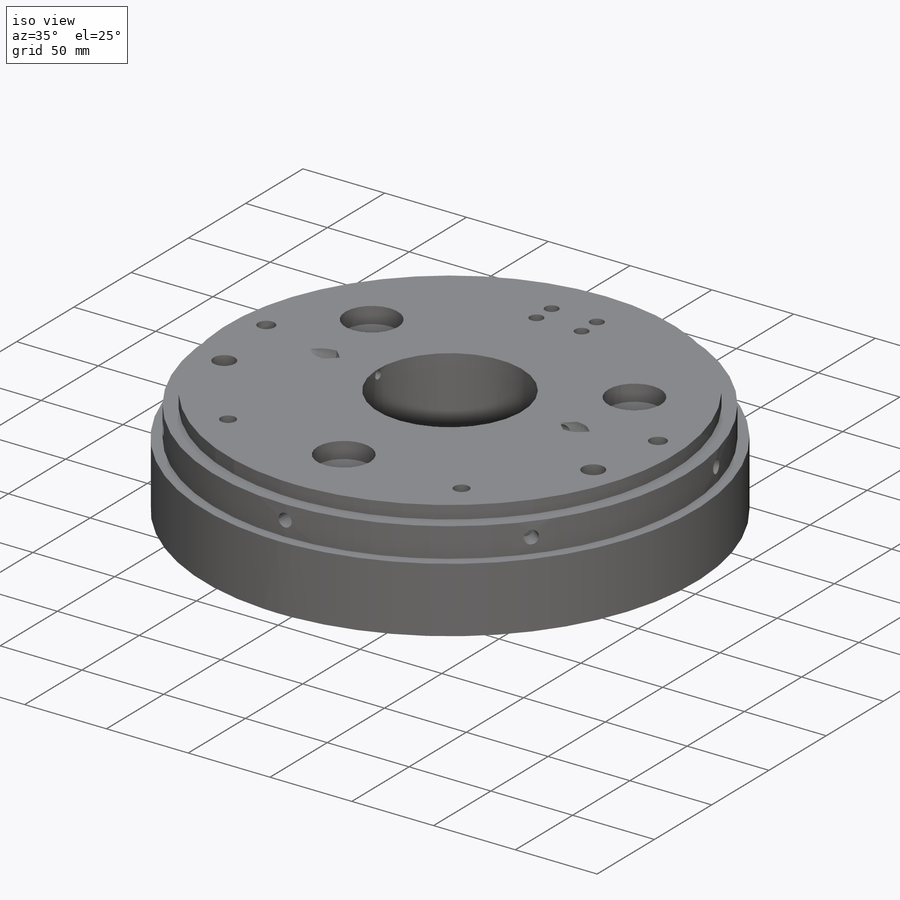
[diagram: iso view]
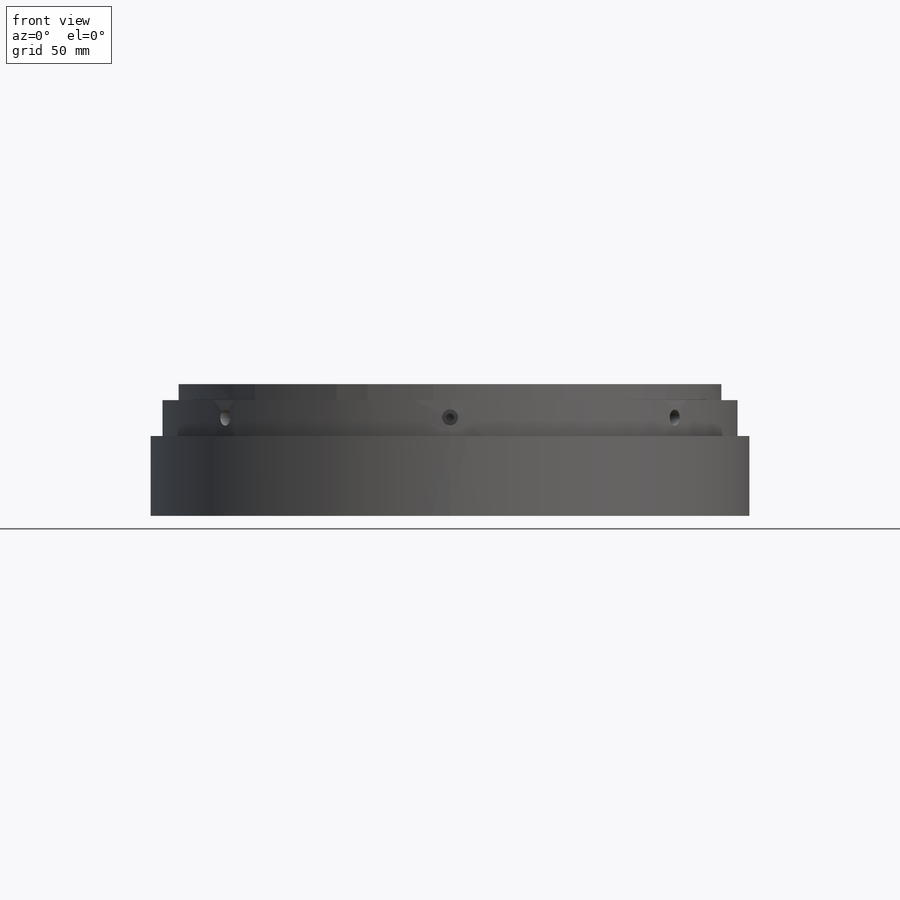
[diagram: front view]
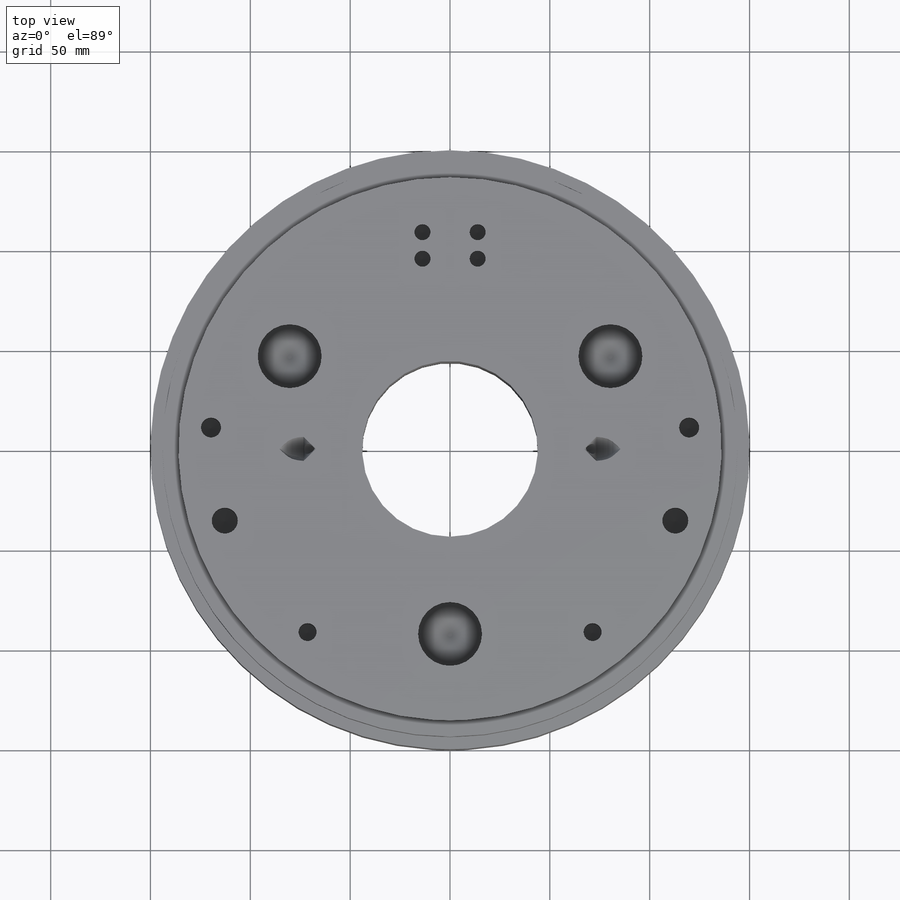
[diagram: top view]
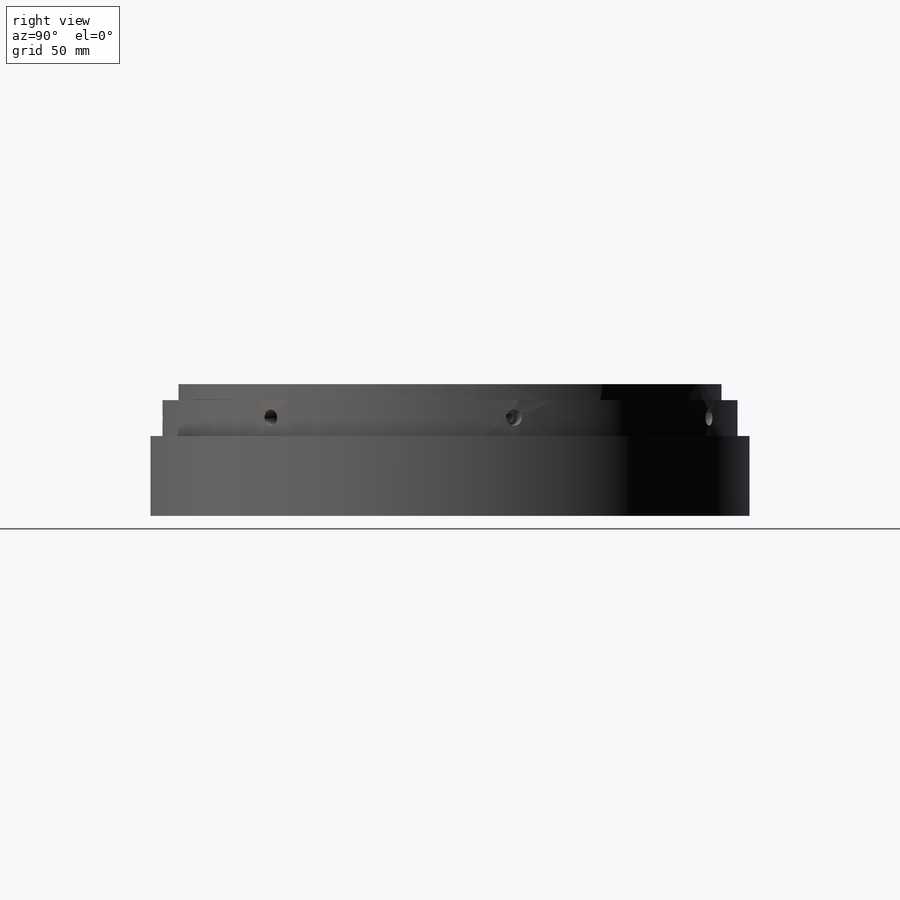
[diagram: right view]
SOLIDWORKS PART (.sldprt)
format: sldprt  version: not decoded by parser v0  size: 458,240 bytes
history: native  units: mm
features: sketch x20, cut_extrude x16, pattern_circular x5, extrude x3, plane x2, mirror x2, material x1, cut_revolve x1 (+13 scaffold rows collapsed)
feature tree (63):
  scaffold x13  (default folders/planes/origin — collapsed)
  material  "Material <not specified>"
  sketch  "Sketch1"  dims[D1=~128.404404mm]
  extrude  "Extrude1"  Depth=40mm
  sketch  "Sketch2"  dims[D1=~95.001636mm]
  extrude  "Extrude2"  Depth=18mm
  sketch  "Sketch3"  dims[D1=~110.966161mm]
  extrude  "Extrude4"  Depth=8mm
  plane  "Plane3"  Offset=144mm
  sketch  "Sketch5"  dims[D1=8.0mm]
  sketch  "Sketch7"  dims[D1=~41.861684mm]
  cut_extrude  "Extrude11"  Depth=100mm
  sketch  "Sketch11"  dims[D1=~18.491398mm]
  cut_extrude  "Extrude12"  Depth=10mm
  pattern_circular  "CirPattern4"  Count=3 Angle=360deg
  sketch  "Sketch14"  dims[D1=6.0mm]
  cut_revolve  "Cut-Revolve1"  Angle=360deg
  plane  "Plane5"  Offset=43mm
  sketch  "Sketch16"  dims[D1=5.0mm]
  pattern_circular  "CirPattern5"  Count=2 Angle=360deg
  cut_extrude  "Extrude13"  Depth=30mm
  pattern_circular  "CirPattern6"  Count=2 Angle=360deg
  sketch  "Sketch18"  dims[D1=~7.32605mm]
  cut_extrude  "Extrude19"  Depth=18mm
  sketch  "Sketch22"  dims[D1=~9.100859mm]
  cut_extrude  "Extrude20"  Depth=18mm
  sketch  "Sketch23"  dims[D1=~10.814333mm]
  cut_extrude  "Extrude21"  Depth=18mm
  sketch  "Sketch24"  dims[D1=~7.828855mm]
  cut_extrude  "Extrude23"  Depth=8mm
  mirror  "Mirror3"
  sketch  "Sketch25"
  cut_extrude  "Extrude25"  Depth=4mm
  pattern_circular  "CirPattern7"  Count=3 Angle=360deg
  sketch  "Sketch27"
  cut_extrude  "Extrude27"  Depth=2mm
  sketch  "Sketch29"
  cut_extrude  "Extrude29"  Depth=2mm
  sketch  "Sketch30"
  cut_extrude  "Extrude30"  Depth=2mm
  sketch  "Sketch31"
  cut_extrude  "Extrude31"  Depth=2mm
  sketch  "Sketch32"
  cut_extrude  "Extrude32"  Depth=2mm
  mirror  "Mirror4"
  cut_extrude  "Extrude33"  Depth=10mm
  sketch  "Sketch33"  dims[D1=~1.772135mm]
  cut_extrude  "Extrude34"  Depth=5mm
  sketch  "Sketch34"
  cut_extrude  "Extrude36"  Depth=1mm
  pattern_circular  "CirPattern10"  Count=7 Angle=360deg
decode coverage: 38 of 47 modeling features carry decoded parameters
note: ~ marks probable driven/reference dimensions
note: suppression state not decoded; provenance and decode notes live in map.json
